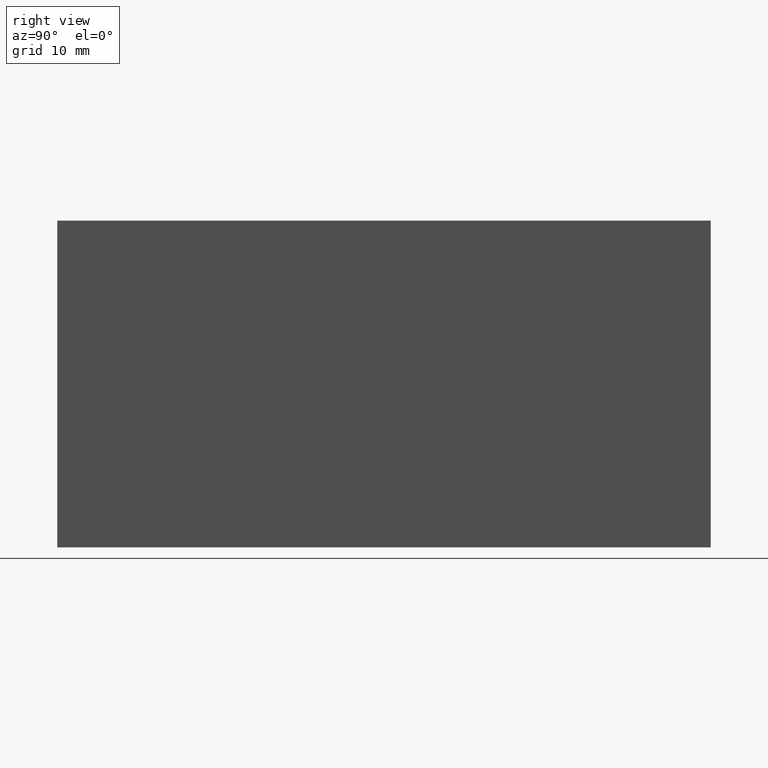
[diagram: clean part render]
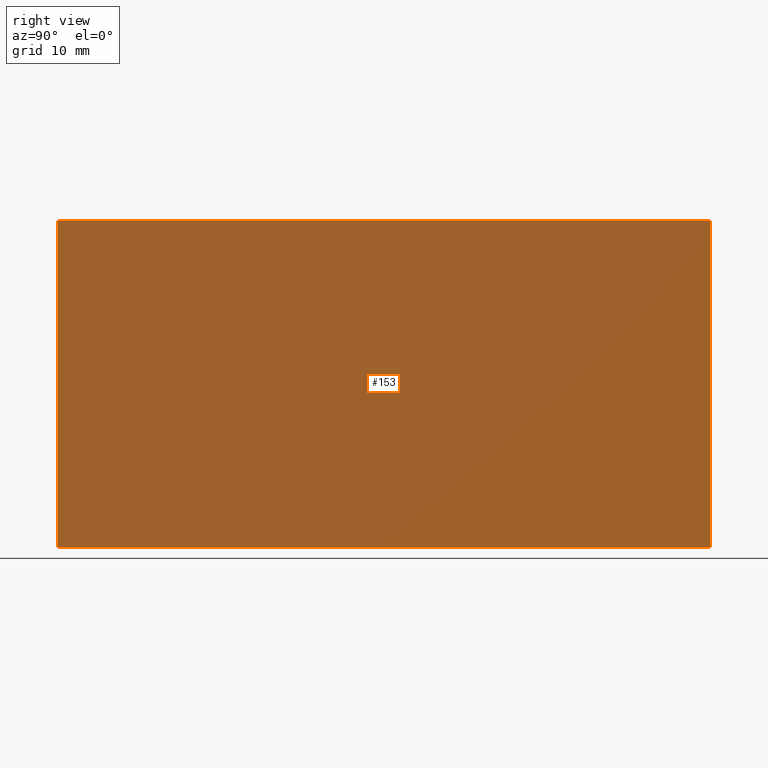
[diagram: same view with one face highlighted and labeled with its STEP entity id]
A machine part, right view. The second image highlights one B-rep face of the part: STEP entity #153.
In plain terms, the highlighted planar face has unit normal (-1, 0, 0).
Its self-contained STEP definition (entity closure, byte-faithful):
#1 = VERTEX_POINT ( 'NONE', #164 ) ;
#5 = CARTESIAN_POINT ( 'NONE',  ( -250.7447956651487300, 60.00000000000000000, 15.00000000000000000 ) ) ;
#21 = FACE_OUTER_BOUND ( 'NONE', #62, .T. ) ;
#29 = LINE ( 'NONE', #138, #144 ) ;
#34 = DIRECTION ( 'NONE',  ( -0.0000000000000000000, -0.0000000000000000000, -1.000000000000000000 ) ) ;
#37 = ORIENTED_EDGE ( 'NONE', *, *, #83, .F. ) ;
#43 = ORIENTED_EDGE ( 'NONE', *, *, #182, .T. ) ;
#47 = VECTOR ( 'NONE', #146, 1000.000000000000000 ) ;
#56 = VECTOR ( 'NONE', #192, 1000.000000000000000 ) ;
#62 = EDGE_LOOP ( 'NONE', ( #199, #37, #76, #43 ) ) ;
#64 = LINE ( 'NONE', #70, #47 ) ;
#65 = CARTESIAN_POINT ( 'NONE',  ( -250.7447956651487300, 0.0000000000000000000, 15.00000000000000000 ) ) ;
#69 = CARTESIAN_POINT ( 'NONE',  ( -250.7447956651487300, 60.00000000000000000, -14.99999999999997200 ) ) ;
#70 = CARTESIAN_POINT ( 'NONE',  ( -250.7447956651487300, 60.00000000000000000, -14.99999999999997200 ) ) ;
#76 = ORIENTED_EDGE ( 'NONE', *, *, #158, .F. ) ;
#79 = VERTEX_POINT ( 'NONE', #69 ) ;
#83 = EDGE_CURVE ( 'NONE', #79, #1, #64, .T. ) ;
#85 = VERTEX_POINT ( 'NONE', #65 ) ;
#87 = CARTESIAN_POINT ( 'NONE',  ( -250.7447956651487300, 0.0000000000000000000, -14.99999999999997200 ) ) ;
#101 = CARTESIAN_POINT ( 'NONE',  ( -250.7447956651487300, 60.00000000000000000, 15.00000000000000000 ) ) ;
#111 = VERTEX_POINT ( 'NONE', #101 ) ;
#122 = LINE ( 'NONE', #87, #56 ) ;
#127 = VECTOR ( 'NONE', #174, 1000.000000000000000 ) ;
#128 = AXIS2_PLACEMENT_3D ( 'NONE', #139, #136, #156 ) ;
#132 = PLANE ( 'NONE',  #128 ) ;
#136 = DIRECTION ( 'NONE',  ( -1.000000000000000000, 0.0000000000000000000, 0.0000000000000000000 ) ) ;
#138 = CARTESIAN_POINT ( 'NONE',  ( -250.7447956651487300, 60.00000000000000000, -14.99999999999997200 ) ) ;
#139 = CARTESIAN_POINT ( 'NONE',  ( -250.7447956651487300, 60.00000000000000000, -14.99999999999997200 ) ) ;
#144 = VECTOR ( 'NONE', #34, 1000.000000000000000 ) ;
#146 = DIRECTION ( 'NONE',  ( -0.0000000000000000000, -1.000000000000000000, -0.0000000000000000000 ) ) ;
#153 = ADVANCED_FACE ( 'NONE', ( #21 ), #132, .F. ) ;
#156 = DIRECTION ( 'NONE',  ( 0.0000000000000000000, 0.0000000000000000000, 1.000000000000000000 ) ) ;
#158 = EDGE_CURVE ( 'NONE', #111, #79, #29, .T. ) ;
#160 = EDGE_CURVE ( 'NONE', #85, #1, #122, .T. ) ;
#164 = CARTESIAN_POINT ( 'NONE',  ( -250.7447956651487300, 0.0000000000000000000, -14.99999999999997200 ) ) ;
#174 = DIRECTION ( 'NONE',  ( -0.0000000000000000000, -1.000000000000000000, -0.0000000000000000000 ) ) ;
#182 = EDGE_CURVE ( 'NONE', #111, #85, #190, .T. ) ;
#190 = LINE ( 'NONE', #5, #127 ) ;
#192 = DIRECTION ( 'NONE',  ( -0.0000000000000000000, -0.0000000000000000000, -1.000000000000000000 ) ) ;
#199 = ORIENTED_EDGE ( 'NONE', *, *, #160, .T. ) ;